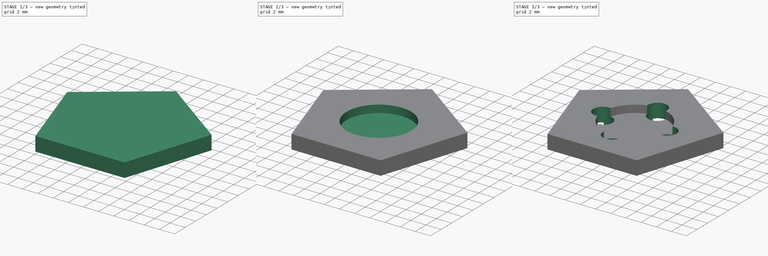
[diagram: build sequence overview — one tinted view per stage of 3, left to right]
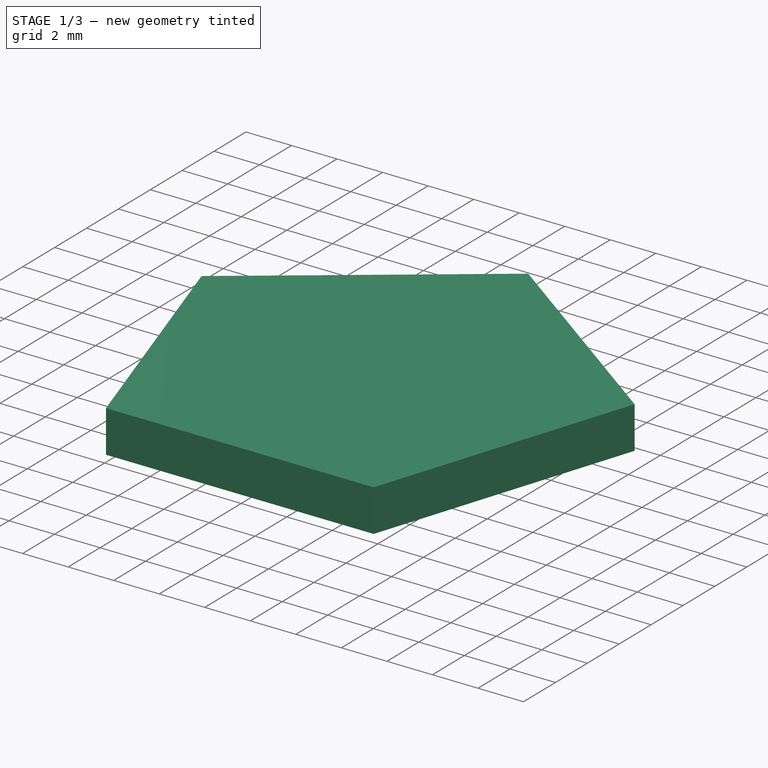
[diagram: stage 1 of 3 — iso view after this stage's code; geometry added in this stage tinted green]
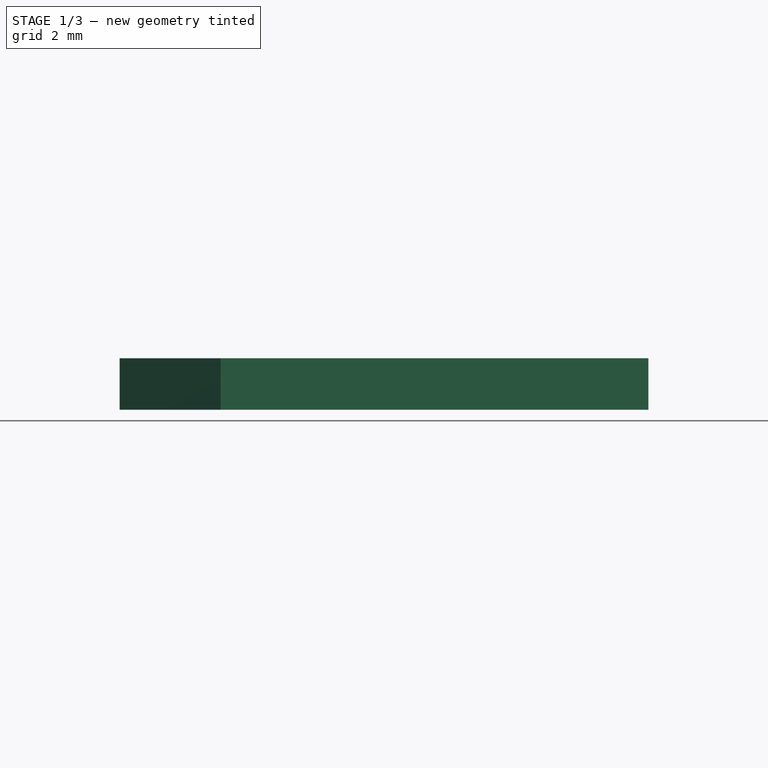
[diagram: stage 1 of 3 — front view after this stage's code; geometry added in this stage tinted green]
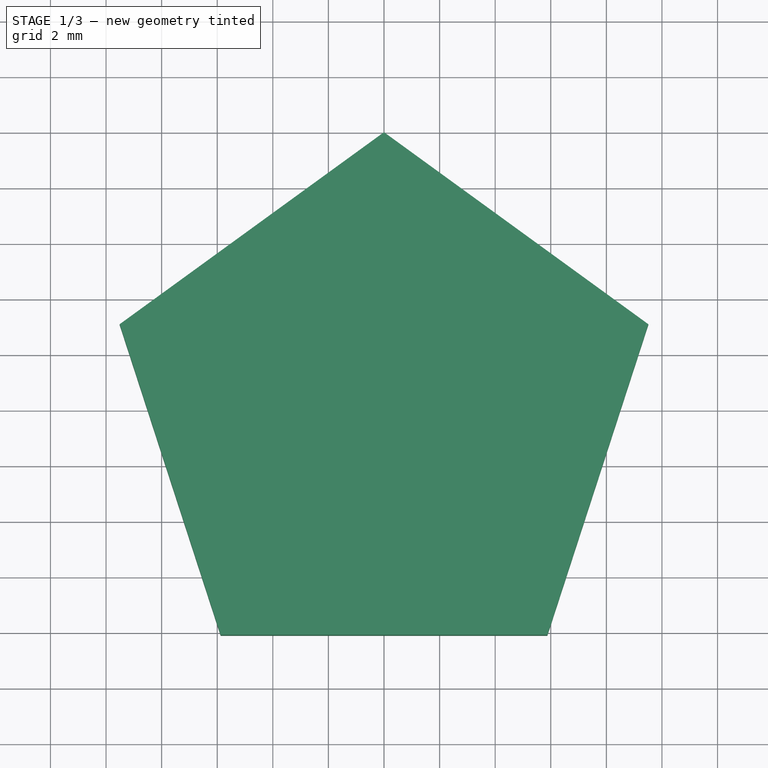
[diagram: stage 1 of 3 — top view after this stage's code; geometry added in this stage tinted green]
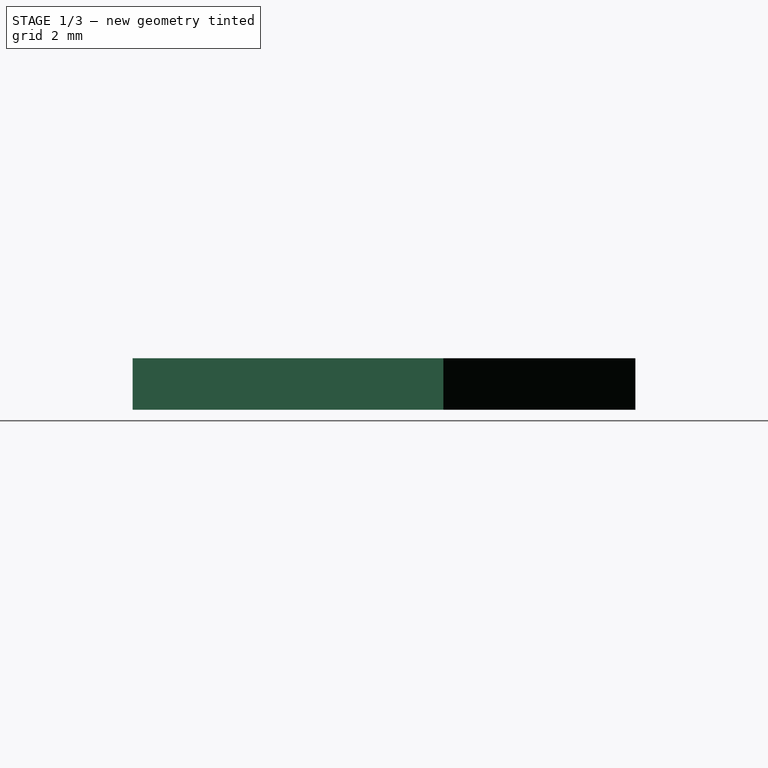
[diagram: stage 1 of 3 — right view after this stage's code; geometry added in this stage tinted green]
FCSTD DOCUMENT  (FreeCAD 2023.131R26244 +5365 (Git))
Label: Button
License: All rights reserved
LicenseURL: http://en.wikipedia.org/wiki/All_rights_reserved
objects: Sketcher::SketchObject×5, PartDesign::Pocket×3, PartDesign::Pad×2, Spreadsheet::Sheet×1, PartDesign::PolarPattern×1, PartDesign::Body×1
note: 29 computed .brp shape members not serialized (recipe doc carries the construction recipe); baked Part::Feature solids carry a one-line shape summary decoded from their .brp

FEATURE [Spreadsheet::Sheet] Spreadsheet  label="Parameters"
  PythonMode = false
  ShowCells = 0
  TreeRank = 1
  cells = A1=Button Type; B1(Type)=Flat; C1=Flat, Shank, Stud; AB1=Side Length; AC1=Y Position; AD1=Angle; A2=Overall Diameter; B2(Diameter)=20; AA2=Circle; AC2(Circle_Y)==Sides == 0 ? 0 : 2 * Diameter; A3=Thickness of Flat Surface; B3(Thickness)=1.85; AA3=Triangle; AB3(Triangle_Side_Length)==Diameter * sqrt(3) / 2; AC3(Triangle_Y)==Sides == 3 ? 0 : 4 * Diameter; AD3(Triangle_Angle)=60; A4=Number of Sides; B4(Sides)=5; C4=One of the following: 0 (circle), 3, 4, 5, 6, 7, 8; AA4=Square; AB4(Square_Side_Length)==Diameter * sqrt(2) / 2; AC4(Square_Y)==Sides == 4 ? 0 : 6 * Diameter; AD4(Quare_Angle)=90; A5=Number of Holes; B5(Holes)=4; AA5=Pentagon; AB5(Pentagon_Side_Length)==Diameter * sin(72) / sin(54) / 2; AC5(Pentagon_Y)==Sides == 5 ? 0 : 8 * Diameter; AD5(Pentagon_Angle)=108; A6=Hole Diameter; B6(Hole_Diameter)=2.5; AA6=Hexagon; AB6(Hexagon_Side_Length)==Diameter / 2; AC6(Hexagon_Y)==Sides == 6 ? 0 : 10 * Diameter; AD6(Hexagon_Angle)=120; A7=Hole Distance from Center; B7(Hole_Distance)=4.25; AA7=Heptagon; AB7(Heptagon_Side_Length)==Diameter * sin(51.4286) / sin(64.28570000000001) / 2; AC7(Heptagon_Y)==Sides == 7 ? 0 : 12 * Diameter; AD7(Heptagon_Angle)=128.57; A8=Top Recess Diameter; B8(Recess_Diameter)=8.5; AA8=Octagon; AB8(Octagon_Side_Length)==Diameter * sqrt(2 + sqrt(2)) / sqrt(2) / 2; AC8(Octagon_Y)==Sides == 8 ? 0 : 14 * Diameter; AD8(Octagon_Angle)=135; A9=Top Recess Depth; B9(Recess_Depth)=1; A10=Bottom Protrusion Diameter; B10(Protrusion_Diameter)=10; A11=Bottom Protrusion Thickness; B11(Protrusion_Thickness)=0.5; A12=Fillet; B12(Fillet)=0.5
FEATURE [Sketcher::SketchObject] Sketch  label="Button Face Sketch"
  ArcFitTolerance = 1e-06
  AttachmentSupport = -> [XY_Plane]
  ExternalBSplineMaxDegree = 5
  ExternalBSplineTolerance = 0.0001
  FullyConstrained = true
  InternalTolerance = 1e-06
  InvalidShape = false
  MakeInternals = false
  MapMode = 5
  Support = -> [XY_Plane]
  TreeRank = 12
  ValidateShape = true
  expr: Constraints[19] = <<Parameters>>.Triangle_Y
  expr: Constraints[1] = <<Parameters>>.Diameter
  expr: Constraints[29] = <<Parameters>>.Square_Side_Length
  expr: Constraints[2] = <<Parameters>>.Circle_Y
  expr: Constraints[37] = <<Parameters>>.Square_Y
  expr: Constraints[49] = <<Parameters>>.Pentagon_Side_Length
  expr: Constraints[50] = <<Parameters>>.Pentagon_Angle
  expr: Constraints[59] = <<Parameters>>.Pentagon_Y
  expr: Constraints[79] = <<Parameters>>.Diameter
  expr: Constraints[80] = <<Parameters>>.Hexagon_Y
  expr: Constraints[9] = <<Parameters>>.Triangle_Side_Length
  sketch-geometry (29):
    g0: Circle CenterX=0 CenterY=40 CenterZ=0 NormalX=0 NormalY=0 NormalZ=1 AngleXU=0 Radius=10
    g1: LineSegment StartX=0 StartY=90 StartZ=0 EndX=-8.66025 EndY=75 EndZ=0
    g2: LineSegment StartX=-8.66025 StartY=75 StartZ=0 EndX=8.66025 EndY=75 EndZ=0
    g3: LineSegment StartX=8.66025 StartY=75 StartZ=0 EndX=0 EndY=90 EndZ=0
    g4: LineSegment [constr] StartX=8.66025 StartY=75 StartZ=0 EndX=-4.33013 EndY=82.5 EndZ=0
    g5: LineSegment [constr] StartX=-8.66025 StartY=75 StartZ=0 EndX=4.33013 EndY=82.5 EndZ=0
    g6: GeomPoint [constr] X=-4e-16 Y=80 Z=0
    g7: LineSegment StartX=-7.07107 StartY=127.071 StartZ=0 EndX=-7.07107 EndY=112.929 EndZ=0
    g8: LineSegment StartX=-7.07107 StartY=112.929 StartZ=0 EndX=7.07107 EndY=112.929 EndZ=0
    g9: LineSegment StartX=7.07107 StartY=112.929 StartZ=0 EndX=7.07107 EndY=127.071 EndZ=0
    g10: LineSegment StartX=7.07107 StartY=127.071 StartZ=0 EndX=-7.07107 EndY=127.071 EndZ=0
    g11: LineSegment [constr] StartX=-7.07107 StartY=127.071 StartZ=0 EndX=7.07107 EndY=112.929 EndZ=0
    g12: LineSegment [constr] StartX=-7.07107 StartY=112.929 StartZ=0 EndX=7.07107 EndY=127.071 EndZ=0
    g13: GeomPoint [constr] X=0 Y=120 Z=0
    g14: LineSegment StartX=0 StartY=10 StartZ=0 EndX=-9.51057 EndY=3.09017 EndZ=0
    g15: LineSegment StartX=-9.51057 StartY=3.09017 StartZ=0 EndX=-5.87785 EndY=-8.09017 EndZ=0
    g16: LineSegment StartX=-5.87785 StartY=-8.09017 StartZ=0 EndX=5.87785 EndY=-8.09017 EndZ=0
    g17: LineSegment StartX=5.87785 StartY=-8.09017 StartZ=0 EndX=9.51057 EndY=3.09017 EndZ=0
    g18: LineSegment StartX=9.51057 StartY=3.09017 StartZ=0 EndX=0 EndY=10 EndZ=0
    g19: LineSegment [constr] StartX=5.87785 StartY=-8.09017 StartZ=0 EndX=-4.75528 EndY=6.54508 EndZ=0
    g20: LineSegment [constr] StartX=-5.87785 StartY=-8.09017 StartZ=0 EndX=4.75528 EndY=6.54508 EndZ=0
    g21: GeomPoint [constr] X=1.1e-15 Y=0 Z=0
    g22: LineSegment StartX=-8.66025 StartY=205 StartZ=0 EndX=-8.66025 EndY=195 EndZ=0
    g23: LineSegment StartX=-8.66025 StartY=195 StartZ=0 EndX=3.411e-13 EndY=190 EndZ=0
    g24: LineSegment StartX=3.416e-13 StartY=190 StartZ=0 EndX=8.66025 EndY=195 EndZ=0
    g25: LineSegment StartX=8.66025 StartY=195 StartZ=0 EndX=8.66025 EndY=205 EndZ=0
    g26: LineSegment StartX=8.66025 StartY=205 StartZ=0 EndX=0 EndY=210 EndZ=0
    g27: LineSegment StartX=0 StartY=210 StartZ=0 EndX=-8.66025 EndY=205 EndZ=0
    g28: Circle [constr] CenterX=0 CenterY=200 CenterZ=0 NormalX=0 NormalY=0 NormalZ=1 AngleXU=0 Radius=10
  constraints (74):
    c: PointOnObject(g0,g-2)
    c: Diameter(g0) = 20
    c: DistanceY(g-1,g0) = 40
    c: Coincident(g1,g2)
    c: Coincident(g2,g3)
    c: Coincident(g3,g1)
    c: Equal(g1,g2)
    c: Equal(g1,g3)
    c: PointOnObject(g3,g-2)
    c: Distance(g2) = 17.3205
    c: Horizontal(g2)
    c: Coincident(g4,g2)
    c: PointOnObject(g4,g1)
    c: Coincident(g5,g1)
    c: PointOnObject(g5,g3)
    c: Perpendicular(g3,g5)
    c: Perpendicular(g1,g4)
    c: PointOnObject(g6,g4)
    c: PointOnObject(g6,g5)
    c: DistanceY(g-1,g6) = 80
    c: Coincident(g7,g8)
    c: Coincident(g8,g9)
    c: Coincident(g9,g10)
    c: Coincident(g10,g7)
    c: Equal(g7,g8)
    c: Equal(g7,g9)
    c: Equal(g7,g10)
    c: Horizontal(g8)
    c: Vertical(g7)
    c: Distance(g8) = 14.1421
    c: Coincident(g11,g7)
    c: Coincident(g11,g8)
    c: Coincident(g12,g7)
    c: Coincident(g12,g9)
    c: PointOnObject(g13,g11)
    c: PointOnObject(g13,g12)
    c: PointOnObject(g13,g-2)
    c: DistanceY(g-1,g13) = 120
    c: Coincident(g14,g15)
    c: Coincident(g15,g16)
    c: Coincident(g16,g17)
    c: Coincident(g17,g18)
    c: Coincident(g18,g14)
    c: Equal(g14, g15-g18) x4
    c: PointOnObject(g18,g-2)
    c: Symmetric(g15,g16,g-2)
    c: Distance(g16) = 11.7557
    c: Angle(g17,g16) = 1.88496
    c: Coincident(g19,g16)
    c: PointOnObject(g19,g14)
    c: Coincident(g20,g15)
    c: PointOnObject(g20,g18)
    c: Perpendicular(g18,g20)
    c: Perpendicular(g14,g19)
    c: PointOnObject(g21,g20)
    c: PointOnObject(g21,g19)
    c: DistanceY(g-1,g21) = 0
    c: Coincident(g22,g23)
    c: Coincident(g23,g24)
    c: Coincident(g24,g25)
    c: Coincident(g25,g26)
    c: Coincident(g26,g27)
    c: Coincident(g27,g22)
    c: Equal(g22, g23-g27) x5
    c: PointOnObject(g22,g28)
    c: PointOnObject(g23,g28)
    c: PointOnObject(g24,g28)
    c: PointOnObject(g25,g28)
    c: PointOnObject(g26,g28)
    c: PointOnObject(g27,g28)
    c: PointOnObject(g28,g-2)
    c: PointOnObject(g26,g-2)
    c: Diameter(g28) = 20
    c: DistanceY(g-1,g28) = 200
FEATURE [PartDesign::Pad] Pad  label="Button Face"
  AddSubType = 0
  AlongSketchNormal = false
  AutoTaperInnerAngle = true
  CheckUpToFaceLimits = true
  ClaimChildren = false
  Direction = (0,0,1)
  Fit = 0
  FitJoin = 0
  FixShape = 2
  InnerFit = 0
  InnerFitJoin = 0
  InvalidShape = false
  Length = 1.85
  Length2 = 100
  Linearize = true
  NewSolid = false
  Profile = -> Sketch
  Suppress = false
  TaperInnerAngle = 0
  TaperInnerAngleRev = 0
  TreeRank = 13
  Type = 0
  ValidateShape = true
  _ProfileBasedVersion = 1
  expr: Length = <<Parameters>>.Thickness
FEATURE [Sketcher::SketchObject] Sketch001  label="Crop Sketch"
  ArcFitTolerance = 1e-06
  AttachmentSupport = -> [XY_Plane]
  ExternalBSplineMaxDegree = 5
  ExternalBSplineTolerance = 0.0001
  FullyConstrained = true
  InternalTolerance = 1e-06
  InvalidShape = false
  MakeInternals = false
  MapMode = 5
  Support = -> [XY_Plane]
  TreeRank = 14
  ValidateShape = true
  expr: Constraints[10] = <<Parameters>>.Diameter * 16
  expr: Constraints[7] = <<Parameters>>.Diameter + 0.01
  expr: Constraints[8] = <<Parameters>>.Diameter * 2
  sketch-geometry (4):
    g0: LineSegment StartX=-20 StartY=340.01 StartZ=0 EndX=20 EndY=340.01 EndZ=0
    g1: LineSegment StartX=20 StartY=340.01 StartZ=0 EndX=20 EndY=20.01 EndZ=0
    g2: LineSegment StartX=20 StartY=20.01 StartZ=0 EndX=-20 EndY=20.01 EndZ=0
    g3: LineSegment StartX=-20 StartY=20.01 StartZ=0 EndX=-20 EndY=340.01 EndZ=0
  constraints (11):
    c: Coincident(g0,g1)
    c: Coincident(g1,g2)
    c: Coincident(g2,g3)
    c: Coincident(g3,g0)
    c: Horizontal(g0)
    c: Vertical(g1)
    c: Vertical(g3)
    c: DistanceY(g-1,g1) = 20.01
    c: Distance(g2) = 40
    c: Symmetric(g2,g1,g-2)
    c: Distance(g1) = 320
FEATURE [PartDesign::Pocket] Pocket  label="Crop"
  AddSubType = 1
  AutoTaperInnerAngle = true
  BaseFeature = -> Pad
  CheckUpToFaceLimits = true
  ClaimChildren = false
  Fit = 0
  FitJoin = 0
  FixShape = 1
  InnerFit = 0
  InnerFitJoin = 0
  InvalidShape = false
  Length = 100
  Length2 = 100
  Linearize = true
  NewSolid = false
  Profile = -> Sketch001
  Reversed = true
  Suppress = false
  TaperInnerAngle = 0
  TaperInnerAngleRev = 0
  TreeRank = 15
  Type = 4
  ValidateShape = true
  _ProfileBasedVersion = 1
  _Version = 1
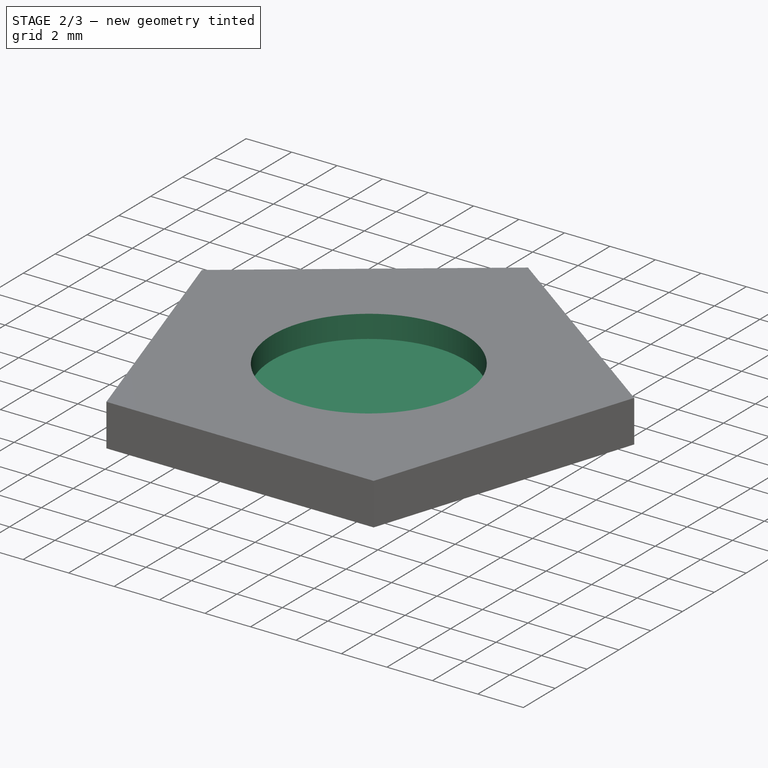
[diagram: stage 2 of 3 — iso view after this stage's code; geometry added in this stage tinted green]
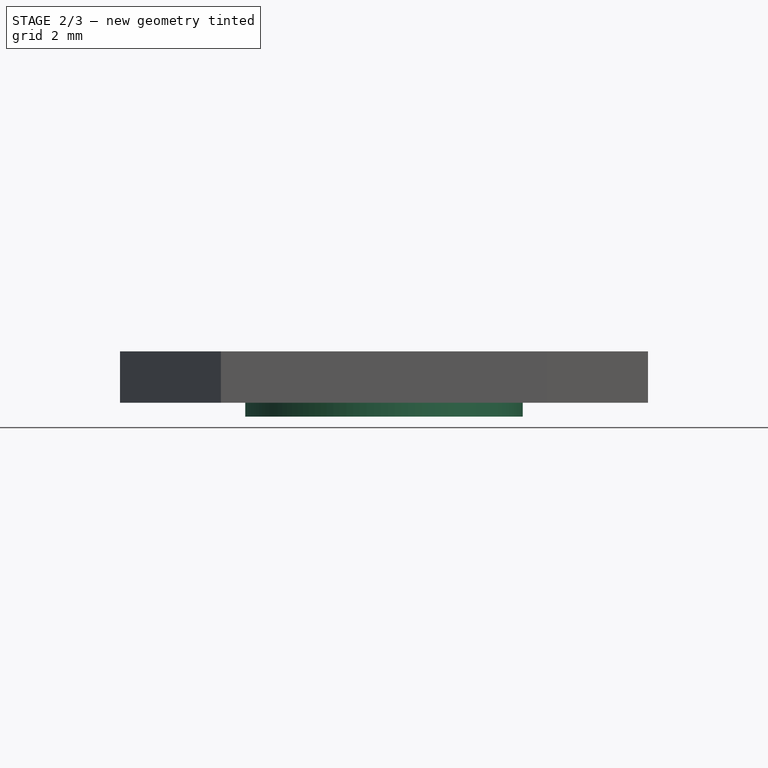
[diagram: stage 2 of 3 — front view after this stage's code; geometry added in this stage tinted green]
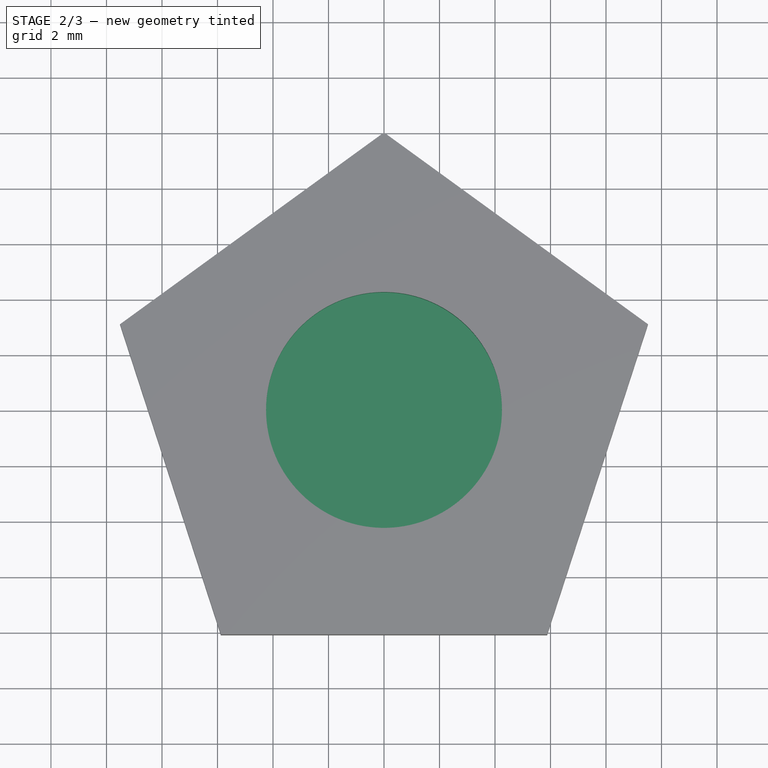
[diagram: stage 2 of 3 — top view after this stage's code; geometry added in this stage tinted green]
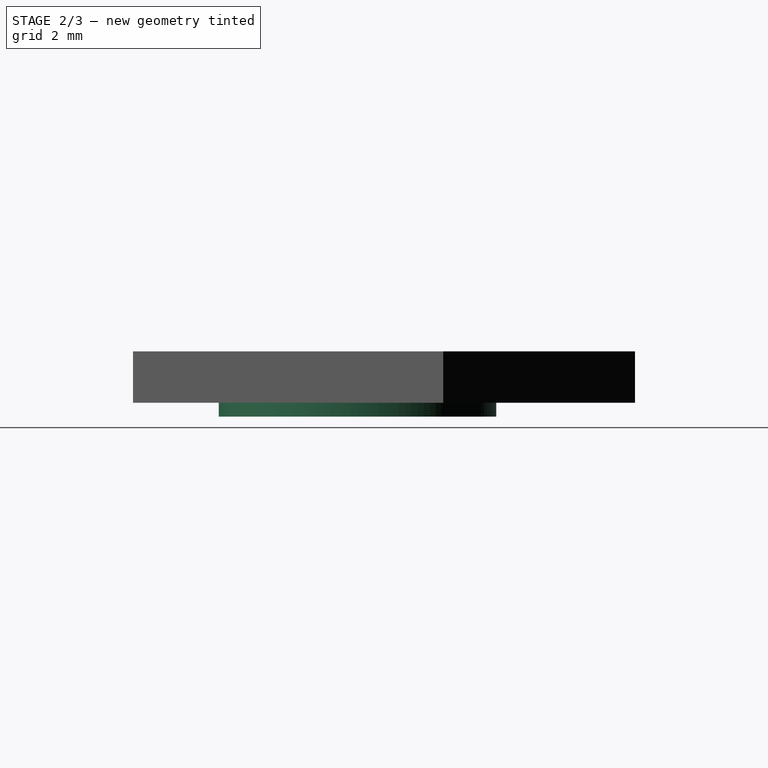
[diagram: stage 2 of 3 — right view after this stage's code; geometry added in this stage tinted green]
FEATURE [Sketcher::SketchObject] Sketch002  label="Hole Sketch"
  ArcFitTolerance = 1e-06
  AttachmentSupport = -> [XY_Plane]
  ExternalBSplineMaxDegree = 5
  ExternalBSplineTolerance = 0.0001
  FullyConstrained = true
  InternalTolerance = 1e-06
  InvalidShape = false
  MakeInternals = false
  MapMode = 5
  Support = -> [XY_Plane]
  TreeRank = 16
  ValidateShape = true
  expr: Constraints[1] = <<Parameters>>.Hole_Diameter
  expr: Constraints[2] = <<Parameters>>.Hole_Distance
  sketch-geometry (1):
    g0: Circle CenterX=-4.25 CenterY=0 CenterZ=0 NormalX=0 NormalY=0 NormalZ=1 AngleXU=0 Radius=1.25
  constraints (3):
    c: PointOnObject(g0,g-1)
    c: Diameter(g0) = 2.5
    c: DistanceX(g0,g-1) = 4.25
FEATURE [Sketcher::SketchObject] Sketch003  label="Recess Sketch"
  ArcFitTolerance = 1e-06
  AttachmentSupport = -> [XY_Plane]
  ExternalBSplineMaxDegree = 5
  ExternalBSplineTolerance = 0.0001
  FullyConstrained = true
  InternalTolerance = 1e-06
  InvalidShape = false
  MakeInternals = false
  MapMode = 5
  Support = -> [XY_Plane]
  TreeRank = 19
  ValidateShape = true
  expr: Constraints[1] = <<Parameters>>.Recess_Diameter
  sketch-geometry (1):
    g0: Circle CenterX=0 CenterY=0 CenterZ=0 NormalX=0 NormalY=0 NormalZ=1 AngleXU=0 Radius=4.25
  constraints (2):
    c: Coincident(g0,g-1)
    c: Diameter(g0) = 8.5
FEATURE [PartDesign::Pocket] Pocket002  label="Recess"
  AddSubType = 1
  AutoTaperInnerAngle = true
  BaseFeature = -> Pocket
  CheckUpToFaceLimits = true
  ClaimChildren = false
  Fit = 0
  FitJoin = 0
  FixShape = 1
  InnerFit = 0
  InnerFitJoin = 0
  InvalidShape = false
  Length = -0.85
  Length2 = 100
  Linearize = true
  NewSolid = false
  Offset = 0.85
  Profile = -> Sketch003
  Suppress = false
  TaperInnerAngle = 0
  TaperInnerAngleRev = 0
  TreeRank = 20
  Type = 4
  ValidateShape = true
  _ProfileBasedVersion = 1
  _Version = 1
  expr: Length = -(<<Parameters>>.Thickness - <<Parameters>>.Recess_Depth)
  expr: Offset = <<Parameters>>.Thickness - <<Parameters>>.Recess_Depth
FEATURE [Sketcher::SketchObject] Sketch004  label="Protrusion Sketch"
  ArcFitTolerance = 1e-06
  AttachmentSupport = -> [XY_Plane]
  ExternalBSplineMaxDegree = 5
  ExternalBSplineTolerance = 0.0001
  FullyConstrained = true
  InternalTolerance = 1e-06
  InvalidShape = false
  MakeInternals = false
  MapMode = 5
  Support = -> [XY_Plane]
  TreeRank = 21
  ValidateShape = true
  expr: Constraints[1] = <<Parameters>>.Protrusion_Diameter
  sketch-geometry (1):
    g0: Circle CenterX=0 CenterY=0 CenterZ=0 NormalX=0 NormalY=0 NormalZ=1 AngleXU=0 Radius=5
  constraints (2):
    c: Coincident(g0,g-1)
    c: Diameter(g0) = 10
FEATURE [PartDesign::Pad] Pad001  label="Protrusion"
  AddSubType = 0
  AlongSketchNormal = false
  AutoTaperInnerAngle = true
  BaseFeature = -> Pocket002
  CheckUpToFaceLimits = true
  ClaimChildren = false
  Direction = (0,0,1)
  Fit = 0
  FitJoin = 0
  FixShape = 1
  InnerFit = 0
  InnerFitJoin = 0
  InvalidShape = false
  Length = 0.5
  Length2 = 100
  Linearize = true
  NewSolid = false
  Profile = -> Sketch004
  Reversed = true
  Suppress = false
  TaperInnerAngle = 0
  TaperInnerAngleRev = 0
  TreeRank = 22
  Type = 0
  ValidateShape = true
  _ProfileBasedVersion = 1
  expr: Length = <<Parameters>>.Protrusion_Thickness
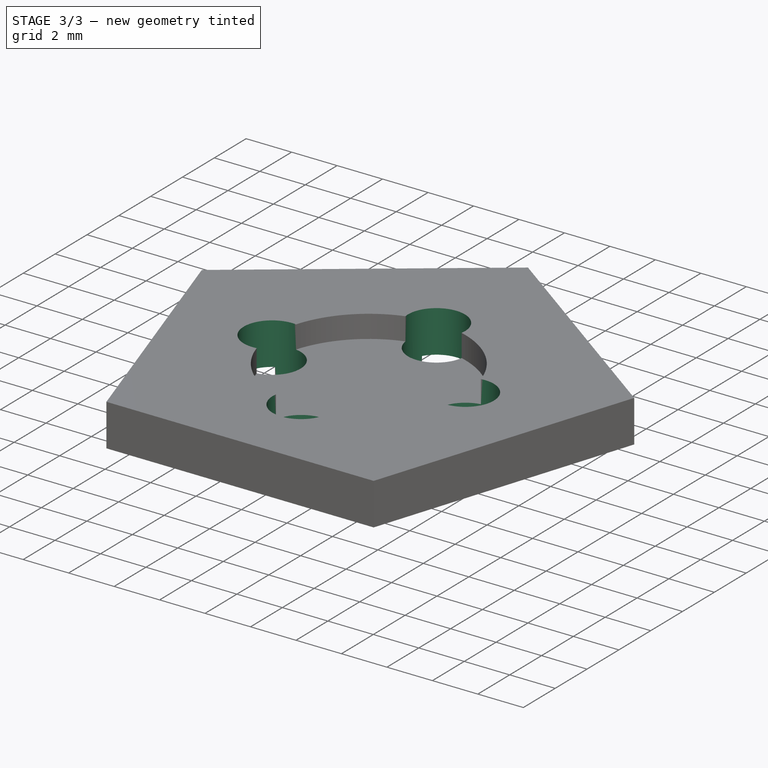
[diagram: stage 3 of 3 — iso view after this stage's code; geometry added in this stage tinted green]
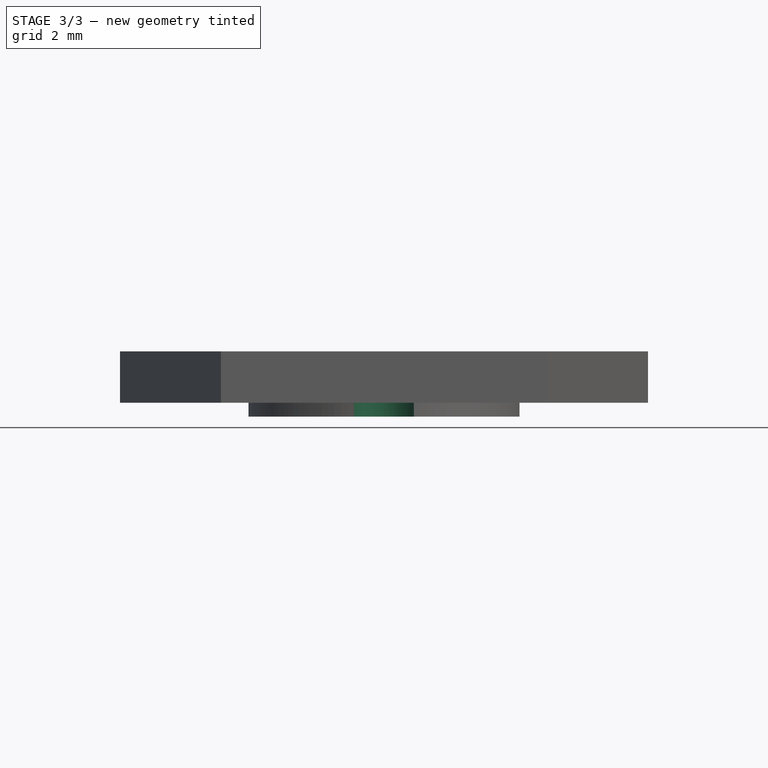
[diagram: stage 3 of 3 — front view after this stage's code; geometry added in this stage tinted green]
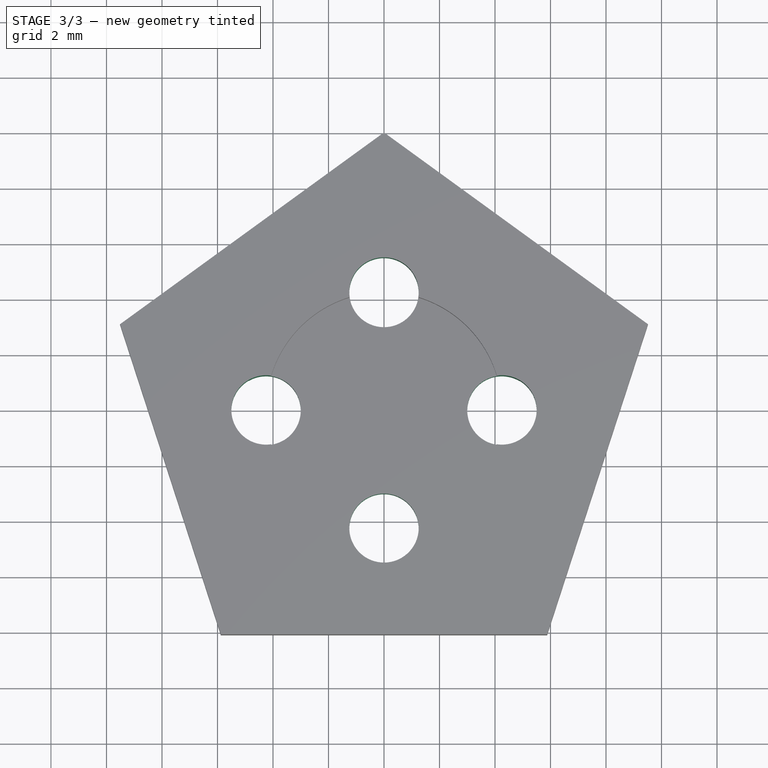
[diagram: stage 3 of 3 — top view after this stage's code; geometry added in this stage tinted green]
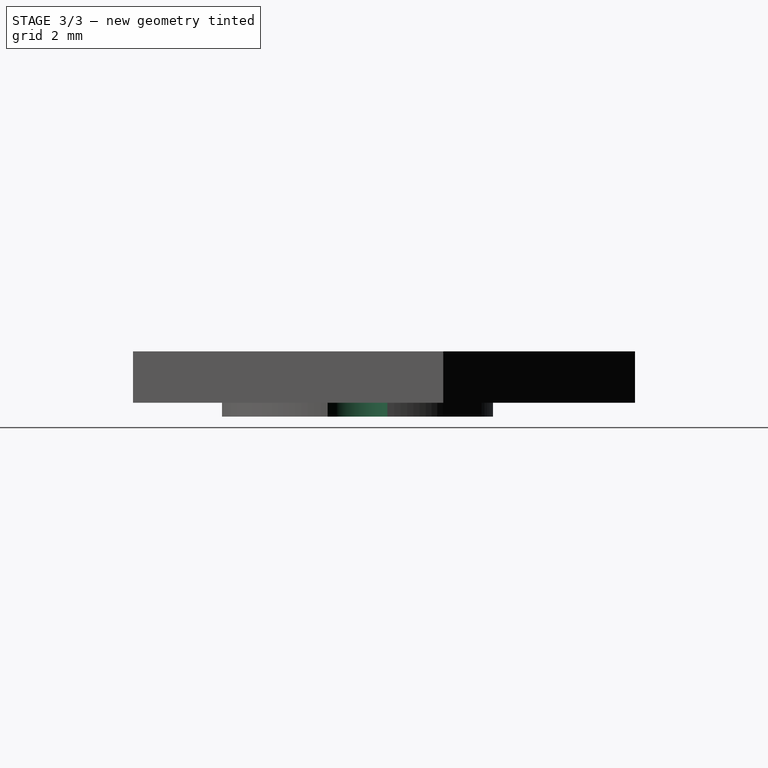
[diagram: stage 3 of 3 — right view after this stage's code; geometry added in this stage tinted green]
FEATURE [PartDesign::Pocket] Pocket001  label="Hole"
  AddSubType = 1
  AutoTaperInnerAngle = true
  BaseFeature = -> Pad001
  CheckUpToFaceLimits = true
  ClaimChildren = false
  Fit = 0
  FitJoin = 0
  FixShape = 1
  InnerFit = 0
  InnerFitJoin = 0
  InvalidShape = false
  Length = 100
  Length2 = -100
  Linearize = true
  Midplane = true
  NewSolid = false
  Offset = -50
  Profile = -> Sketch002
  Reversed = true
  Suppress = false
  TaperInnerAngle = 0
  TaperInnerAngleRev = 0
  TreeRank = 17
  Type = 0
  ValidateShape = true
  _ProfileBasedVersion = 1
  _Version = 1
FEATURE [PartDesign::PolarPattern] PolarPattern  label="Holes"
  AddSubType = 0
  Angle = 360
  Axis = -> Sketch002 [N_Axis]
  BaseFeature = -> Pocket001
  CopyShape = false
  FixShape = 1
  InvalidShape = false
  NewSolid = false
  Occurrences = 4
  OriginalSubs = -> [Pocket001]
  Originals = -> [Pocket001]
  ParallelTransform = true
  SubTransform = true
  Suppress = false
  TreeRank = 18
  ValidateShape = true
  _Version = 3
  expr: Occurrences = <<Parameters>>.Holes
FEATURE [PartDesign::Body] Body  label="Button"
  AutoGroupSolids = false
  ClaimAllChildren = false
  ExportMode = 0
  FixShape = 2
  Group = -> [Sketch,Pad,Sketch001,Pocket,Pocket002,Pad001,Pocket001,PolarPattern,Sketch002,Sketch003,Sketch004]
  InvalidShape = false
  Origin = -> Origin
  Tip = -> PolarPattern
  TreeRank = 11
  ValidateShape = true
  _ExportChildren = -> [Pad,Pocket,Pocket002,Pad001,Pocket001,PolarPattern]
  _GroupVersion = 1
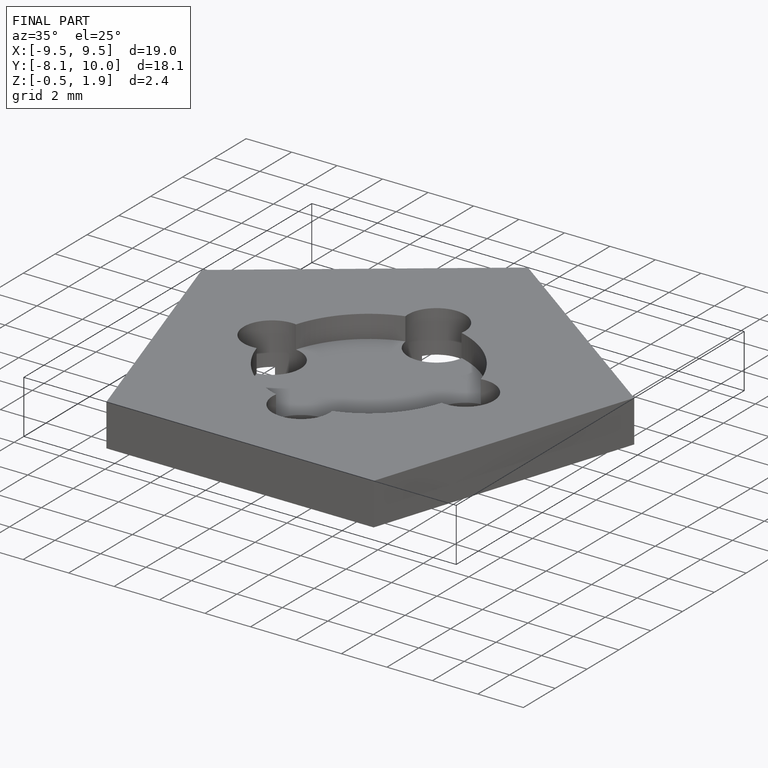
[diagram: finished part — iso view with bounding-box wireframe]
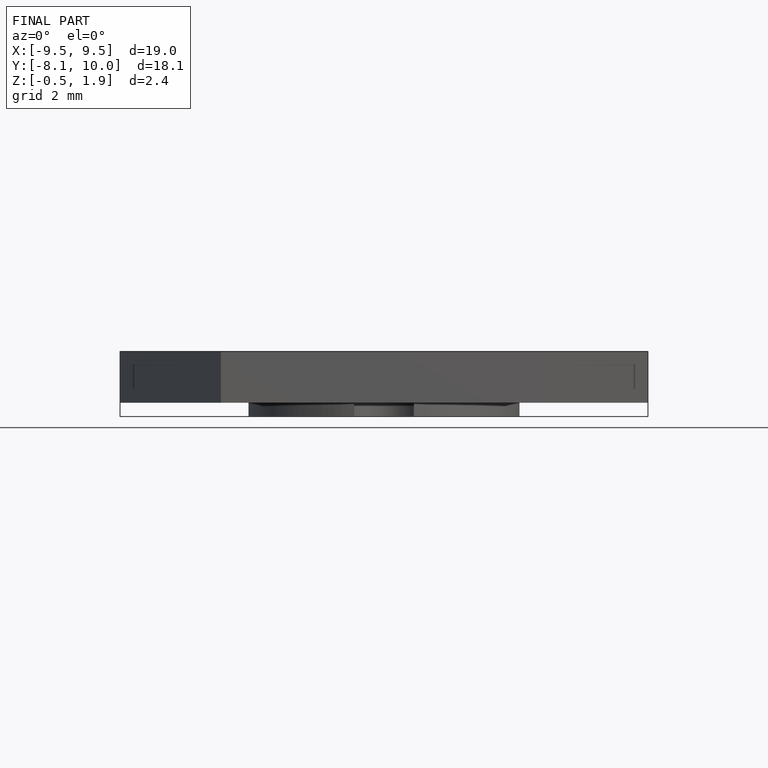
[diagram: finished part — front view with bounding-box wireframe]
